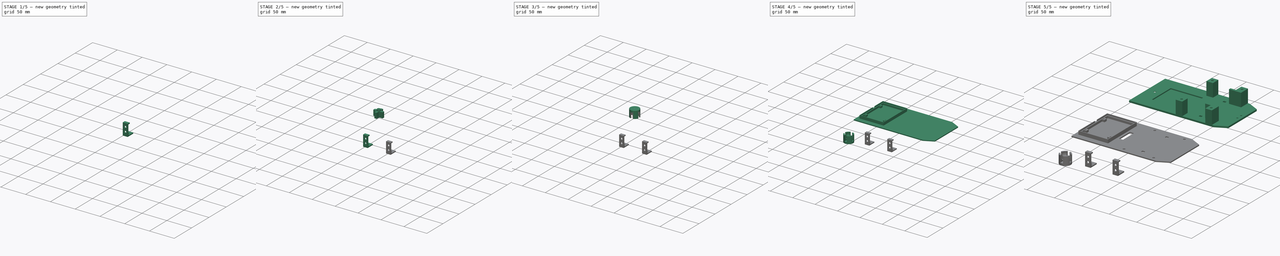
[diagram: build sequence overview — one tinted view per stage of 5, left to right]
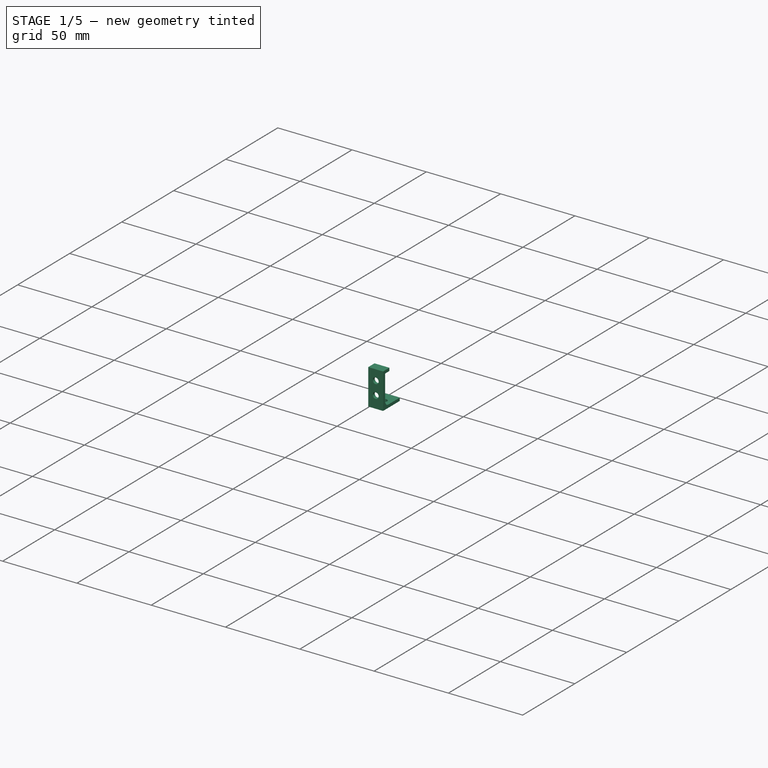
[diagram: stage 1 of 5 — iso view after this stage's code; geometry added in this stage tinted green]
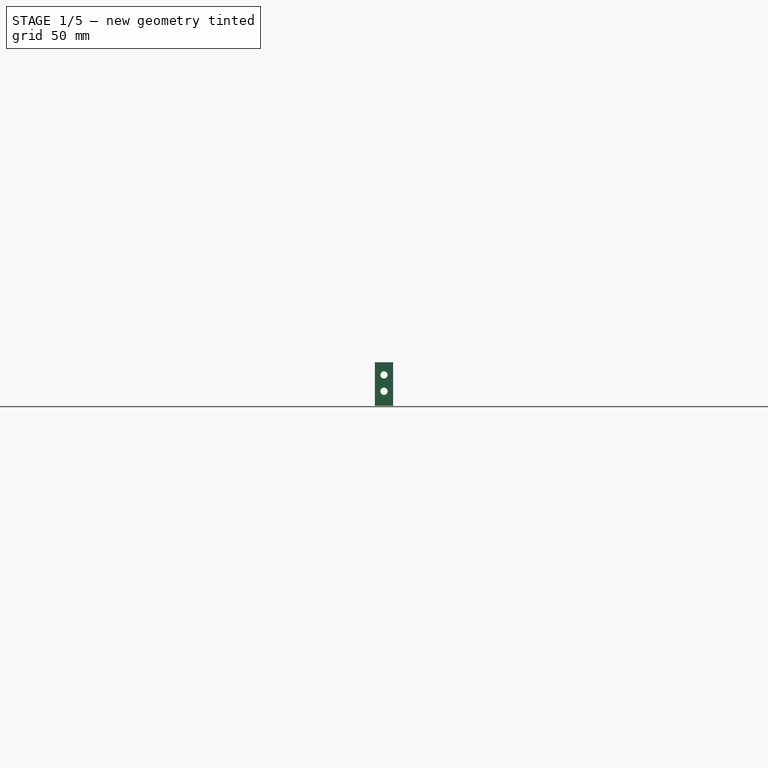
[diagram: stage 1 of 5 — front view after this stage's code; geometry added in this stage tinted green]
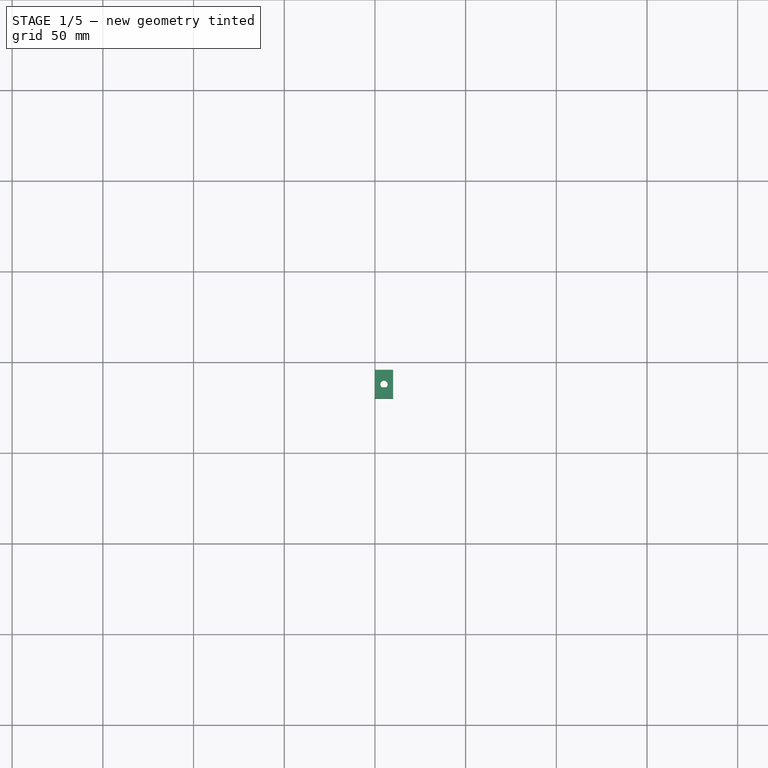
[diagram: stage 1 of 5 — top view after this stage's code; geometry added in this stage tinted green]
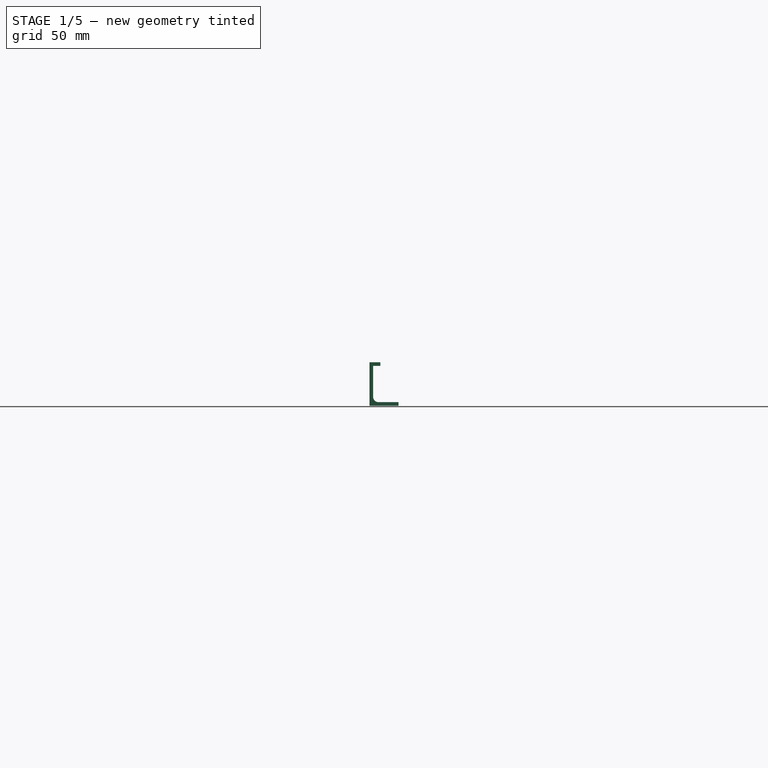
[diagram: stage 1 of 5 — right view after this stage's code; geometry added in this stage tinted green]
FCSTD DOCUMENT  (FreeCAD 0.16R6706 (Git))
Label: base-inferior(2)
License: All rights reserved
LicenseURL: http://en.wikipedia.org/wiki/All_rights_reserved
objects: Sketcher::SketchObject×14, PartDesign::Pocket×9, Part::Part2DObjectPython×9, PartDesign::Pad×5, App::Annotation×5, Part::Cylinder×3, Part::Cut×3, Part::Box×2, Part::MultiFuse×2, Part::Fillet×2, Part::Sphere×1
note: 64 computed .brp shape members not serialized (recipe doc carries the construction recipe); baked Part::Feature solids carry a one-line shape summary decoded from their .brp

FEATURE [Sketcher::SketchObject] Sketch
  Placement = pos=(0,150,0) rot=(0,0,1;0rad)
  sketch-geometry (6):
    g0: LineSegment StartX=-26 StartY=47 StartZ=0 EndX=-26 EndY=-47 EndZ=0
    g1: LineSegment StartX=-26 StartY=-47 StartZ=0 EndX=128 EndY=-47 EndZ=0
    g2: LineSegment StartX=128 StartY=47 StartZ=0 EndX=-26 EndY=47 EndZ=0
    g3: LineSegment StartX=148 StartY=37 StartZ=0 EndX=148 EndY=-37 EndZ=0
    g4: LineSegment StartX=128 StartY=47 StartZ=0 EndX=148 EndY=37 EndZ=0
    g5: LineSegment StartX=148 StartY=-37 StartZ=0 EndX=128 EndY=-47 EndZ=0
  constraints (16):
    c: Coincident(g0,g1)
    c: Coincident(g2,g0)
    c: Vertical(g0)
    c: Horizontal(g1)
    c: Horizontal(g2)
    c: DistanceX(g0,g-1) = 26
    c: DistanceX(g-1,g2) = 128
    c: Symmetric(g1,g2,g-1)
    c: DistanceY(g-1,g0) = 47
    c: DistanceX(g2,g3) = 20
    c: Symmetric(g3,g3,g-1)
    c: DistanceY(g3,g2) = 10
    c: Coincident(g2,g4)
    c: Coincident(g3,g4)
    c: Coincident(g3,g5)
    c: Coincident(g1,g5)
FEATURE [PartDesign::Pad] Pad
  Length = 3
  Length2 = 100
  Placement = pos=(0,150,0) rot=(0,0,1;0rad)
  Sketch = -> Sketch
  Type = 0
FEATURE [Sketcher::SketchObject] Sketch001
  Placement = pos=(0,150,3) rot=(0,0,1;0rad)
  Support = -> Pad [Face8]
  sketch-geometry (4):
    g0: LineSegment StartX=0 StartY=24.5 StartZ=0 EndX=59 EndY=24.5 EndZ=0
    g1: LineSegment StartX=59 StartY=24.5 StartZ=0 EndX=59 EndY=-24.5 EndZ=0
    g2: LineSegment StartX=59 StartY=-24.5 StartZ=0 EndX=0 EndY=-24.5 EndZ=0
    g3: LineSegment StartX=0 StartY=-24.5 StartZ=0 EndX=0 EndY=24.5 EndZ=0
  constraints (12):
    c: Coincident(g0,g1)
    c: Coincident(g1,g2)
    c: Coincident(g2,g3)
    c: Coincident(g3,g0)
    c: Horizontal(g0)
    c: Horizontal(g2)
    c: Vertical(g1)
    c: Vertical(g3)
    c: DistanceX(g-1,g0) = 0
    c: DistanceX(g0,g0) = 59
    c: Symmetric(g0,g2,g-1)
    c: DistanceY(g1,g0) = 49
FEATURE [PartDesign::Pocket] Pocket
  Length = 2
  Placement = pos=(0,150,0) rot=(0,0,1;0rad)
  Sketch = -> Sketch001
  Type = 0
FEATURE [Sketcher::SketchObject] Sketch002
  Placement = pos=(0,150,3) rot=(0,0,1;0rad)
  Support = -> Pocket [Face5]
  sketch-geometry (20):
    g0: LineSegment StartX=59 StartY=47 StartZ=0 EndX=71 EndY=47 EndZ=0
    g1: LineSegment StartX=71 StartY=47 StartZ=0 EndX=71 EndY=33 EndZ=0
    g2: LineSegment StartX=71 StartY=33 StartZ=0 EndX=59 EndY=33 EndZ=0
    g3: LineSegment StartX=59 StartY=33 StartZ=0 EndX=59 EndY=47 EndZ=0
    g4: LineSegment StartX=59 StartY=-33 StartZ=0 EndX=71 EndY=-33 EndZ=0
    g5: LineSegment StartX=71 StartY=-33 StartZ=0 EndX=71 EndY=-47 EndZ=0
    g6: LineSegment StartX=71 StartY=-47 StartZ=0 EndX=59 EndY=-47 EndZ=0
    g7: LineSegment StartX=59 StartY=-47 StartZ=0 EndX=59 EndY=-33 EndZ=0
    g8: LineSegment StartX=103 StartY=29 StartZ=0 EndX=125 EndY=29 EndZ=0
    g9: LineSegment StartX=125 StartY=29 StartZ=0 EndX=125 EndY=47 EndZ=0
    g10: LineSegment StartX=125 StartY=47 StartZ=0 EndX=113 EndY=47 EndZ=0
    g11: LineSegment StartX=113 StartY=47 StartZ=0 EndX=113 EndY=33 EndZ=0
    g12: LineSegment StartX=113 StartY=33 StartZ=0 EndX=103 EndY=33 EndZ=0
    g13: LineSegment StartX=103 StartY=33 StartZ=0 EndX=103 EndY=29 EndZ=0
    g14: LineSegment StartX=103 StartY=-29 StartZ=0 EndX=125 EndY=-29 EndZ=0
    g15: LineSegment StartX=125 StartY=-29 StartZ=0 EndX=125 EndY=-47 EndZ=0
    g16: LineSegment StartX=125 StartY=-47 StartZ=0 EndX=113 EndY=-47 EndZ=0
    g17: LineSegment StartX=113 StartY=-47 StartZ=0 EndX=113 EndY=-33 EndZ=0
    g18: LineSegment StartX=113 StartY=-33 StartZ=0 EndX=103 EndY=-33 EndZ=0
    g19: LineSegment StartX=103 StartY=-33 StartZ=0 EndX=103 EndY=-29 EndZ=0
  constraints (56):
    c: Coincident(g0,g1)
    c: Coincident(g1,g2)
    c: Coincident(g2,g3)
    c: Coincident(g3,g0)
    c: Horizontal(g0)
    c: Horizontal(g2)
    c: Vertical(g1)
    c: Vertical(g3)
    c: Coincident(g4,g5)
    c: Coincident(g5,g6)
    c: Coincident(g6,g7)
    c: Coincident(g7,g4)
    c: Horizontal(g4)
    c: Horizontal(g6)
    c: Vertical(g5)
    c: Vertical(g7)
    c: Coincident(g8,g9)
    c: Coincident(g9,g10)
    c: Coincident(g10,g11)
    c: Coincident(g11,g12)
    c: Coincident(g12,g13)
    c: Coincident(g13,g8)
    c: Coincident(g14,g15)
    c: Coincident(g15,g16)
    c: Coincident(g16,g17)
    c: Coincident(g17,g18)
    c: Coincident(g18,g19)
    c: Coincident(g19,g14)
    c: Horizontal(g8)
    c: Horizontal(g12)
    c: Horizontal(g10)
    c: Horizontal(g16)
    c: Horizontal(g18)
    c: Horizontal(g14)
    c: Vertical(g15)
    c: Vertical(g17)
    c: Vertical(g19)
    c: Vertical(g13)
    c: Vertical(g11)
    c: Vertical(g9)
    c: Symmetric(g5,g0,g-1)
    c: Symmetric(g2,g4,g-1)
    c: DistanceX(g-1,g2) = 59
    c: DistanceX(g0,g0) = 12
    c: DistanceX(g0,g10) = 42
    c: DistanceX(g12,g11) = 10
    c: DistanceX(g10,g9) = 12
    c: Symmetric(g14,g8,g-1)
    c: Symmetric(g17,g11,g-1)
    c: Symmetric(g8,g14,g-1)
    c: DistanceY(g6,g-1) = 47
    c: DistanceY(g5,g4) = 14
    c: DistanceY(g16,g-1) = 47
    c: Symmetric(g15,g9,g-1)
    c: DistanceY(g16,g17) = 14
    c: DistanceY(g8,g12) = 4
FEATURE [PartDesign::Pad] Pad001
  Length = 24
  Length2 = 100
  Placement = pos=(0,150,0) rot=(0,0,1;0rad)
  Sketch = -> Sketch002
  Type = 0
FEATURE [Sketcher::SketchObject] Sketch003
  Placement = pos=(0,150,3) rot=(0,0,1;0rad)
  Support = -> Pad001 [Face4]
  sketch-geometry (11):
    g0: Circle CenterX=-12 CenterY=0 CenterZ=0 NormalX=0 NormalY=0 NormalZ=1 Radius=2
    g1: Circle CenterX=142 CenterY=5 CenterZ=0 NormalX=0 NormalY=0 NormalZ=1 Radius=1.5
    g2: Circle CenterX=142 CenterY=-5 CenterZ=0 NormalX=0 NormalY=0 NormalZ=1 Radius=1.5
    g3: LineSegment StartX=96 StartY=33 StartZ=0 EndX=91 EndY=33 EndZ=0
    g4: LineSegment StartX=91 StartY=33 StartZ=0 EndX=91 EndY=29 EndZ=0
    g5: LineSegment StartX=91 StartY=29 StartZ=0 EndX=96 EndY=29 EndZ=0
    g6: LineSegment StartX=96 StartY=29 StartZ=0 EndX=96 EndY=33 EndZ=0
    g7: LineSegment StartX=96 StartY=-29 StartZ=0 EndX=91 EndY=-29 EndZ=0
    g8: LineSegment StartX=91 StartY=-29 StartZ=0 EndX=91 EndY=-33 EndZ=0
    g9: LineSegment StartX=91 StartY=-33 StartZ=0 EndX=96 EndY=-33 EndZ=0
    g10: LineSegment StartX=96 StartY=-33 StartZ=0 EndX=96 EndY=-29 EndZ=0
  constraints (31):
    c: Coincident(g3,g4)
    c: Coincident(g4,g5)
    c: Coincident(g5,g6)
    c: Coincident(g6,g3)
    c: Horizontal(g3)
    c: Horizontal(g5)
    c: Vertical(g4)
    c: Vertical(g6)
    c: Coincident(g7,g8)
    c: Coincident(g8,g9)
    c: Coincident(g9,g10)
    c: Coincident(g10,g7)
    c: Horizontal(g7)
    c: Horizontal(g9)
    c: Vertical(g8)
    c: Vertical(g10)
    c: Radius(g0) = 2
    c: Radius(g1) = 1.5
    c: Radius(g2) = 1.5
    c: DistanceY(g-1,g0) = 0
    c: DistanceX(g0,g-1) = 12
    c: Symmetric(g2,g1,g-1)
    c: DistanceY(g2,g1) = 10
    c: DistanceX(g-1,g2) = 142
    c: Symmetric(g5,g7,g-1)
    c: Symmetric(g9,g3,g-1)
    c: DistanceX(g-1,g5) = 96
    c: DistanceX(g4,g5) = 5
    c: DistanceY(g4,g3) = 4
    c: DistanceY(g-1,g3) = 33
    c: DistanceX(g8,g9) = 5
FEATURE [PartDesign::Pocket] Pocket001
  Length = 5
  Placement = pos=(0,150,0) rot=(0,0,1;0rad)
  Sketch = -> Sketch003
  Type = 1
FEATURE [Part::Fillet] Fillet002
  Base = -> Pocket001
  Edges = 1 edges r=3: [Edge15]
  Placement = pos=(100,-120,0) rot=(0,0,1;0rad)
FEATURE [App::Annotation] Text005
  LabelText = Escuadras
  Position = (10.14,-75.93,0)
FEATURE [Part::Part2DObjectPython] Line006  # Draft 2D object (typed FeaturePython)
  ChamferSize = 0
  Closed = false
  End = (52.2646,-78.4604,0)
  FilletRadius = 0
  Length = 41.6485
  MakeFace = true
  Points = (2) [(10.6161,-78.4604,0),(52.2646,-78.4604,0)]
  Start = (10.6161,-78.4604,0)
  Subdivisions = 0
FEATURE [Part::Part2DObjectPython] Line007  # Draft 2D object (typed FeaturePython)
  ChamferSize = 0
  Closed = false
  End = (56.2044,-102.38,0)
  FilletRadius = 0
  Length = 24.8932
  MakeFace = true
  Points = (2) [(51.7018,-77.8975,0),(56.2044,-102.38,0)]
  Start = (51.7018,-77.8975,0)
  Subdivisions = 0
FEATURE [Part::Part2DObjectPython] Line008  # Draft 2D object (typed FeaturePython)
  ChamferSize = 0
  Closed = false
  End = (104.607,-102.38,0)
  FilletRadius = 0
  Length = 57.5486
  MakeFace = true
  Points = (2) [(52.2646,-78.4604,0),(104.607,-102.38,0)]
  Start = (52.2646,-78.4604,0)
  Subdivisions = 0
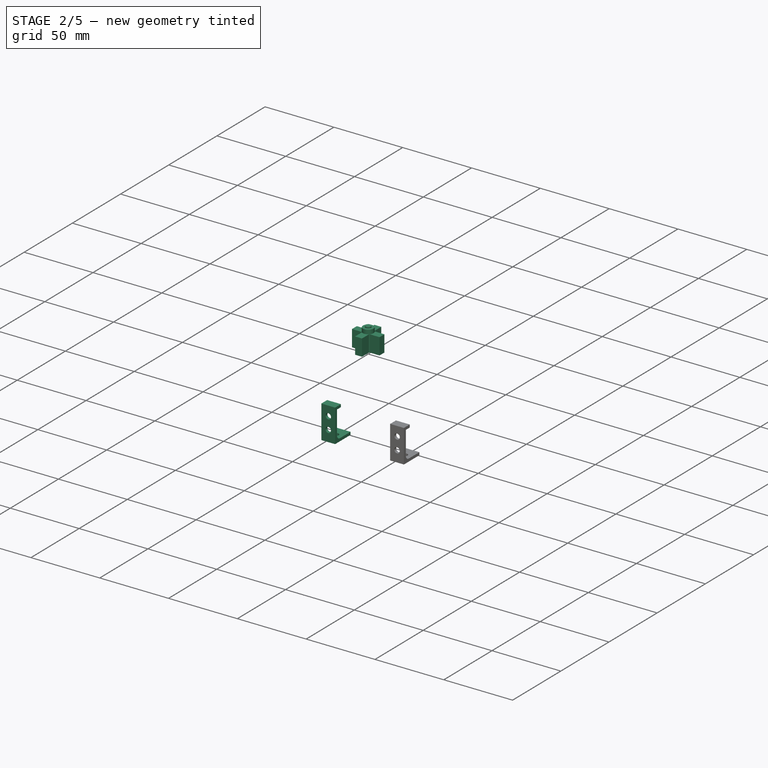
[diagram: stage 2 of 5 — iso view after this stage's code; geometry added in this stage tinted green]
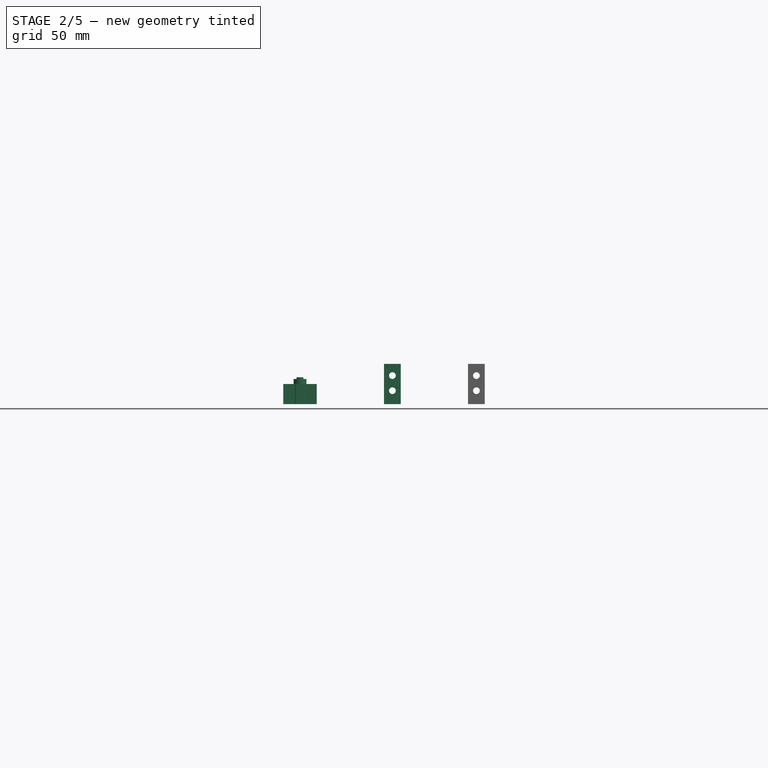
[diagram: stage 2 of 5 — front view after this stage's code; geometry added in this stage tinted green]
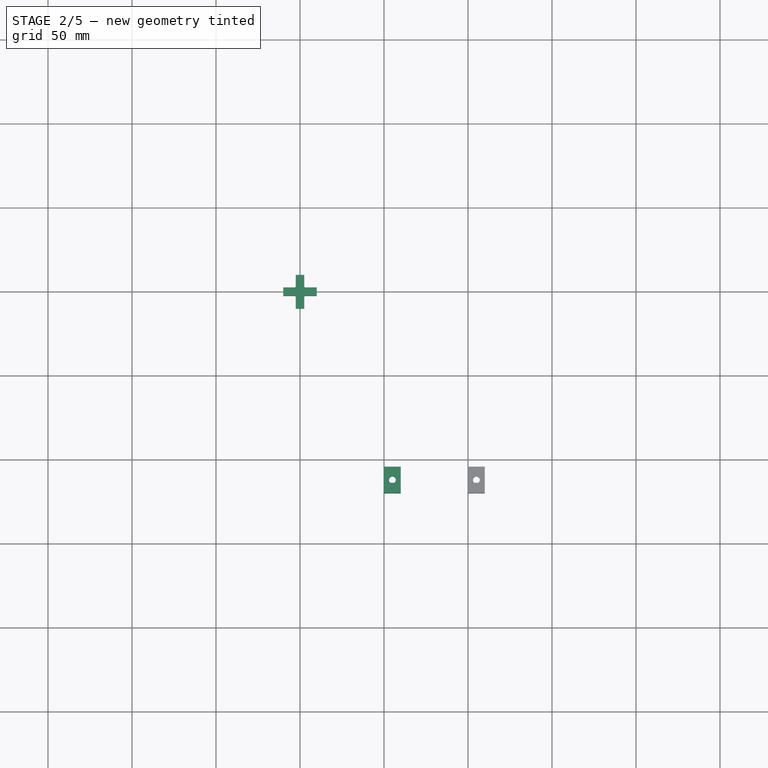
[diagram: stage 2 of 5 — top view after this stage's code; geometry added in this stage tinted green]
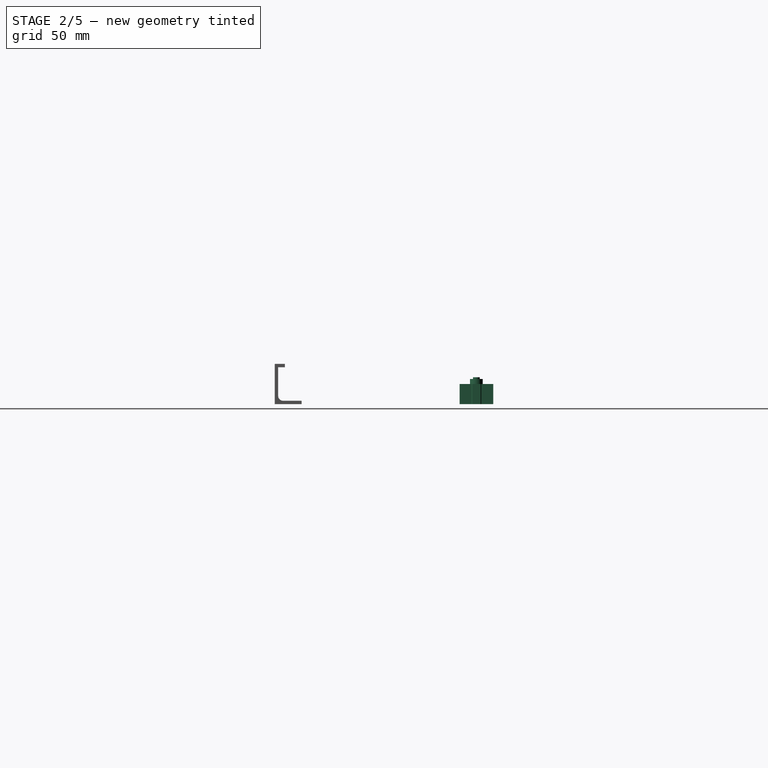
[diagram: stage 2 of 5 — right view after this stage's code; geometry added in this stage tinted green]
FEATURE [Part::Box] Box  label="Cubo"
  Height = 12
  Length = 5
  Placement = pos=(10,-2.5,0) rot=(0,0,1;1.5708rad)
  Width = 20
FEATURE [Part::Box] Box001  label="Cubo001"
  Height = 12
  Length = 5
  Placement = pos=(-2.5,-10,0) rot=(0,0,1;0rad)
  Width = 20
FEATURE [Part::Cylinder] Cylinder001  label="Cilindro001"
  Angle = 360
  Height = 16
  Radius = 2
FEATURE [Part::Cylinder] Cylinder002  label="Cilindro002"
  Angle = 360
  Height = 15
  Radius = 3.8
FEATURE [Part::MultiFuse] Fusion001
  Shapes = -> [Cylinder001,Cylinder002]
FEATURE [App::Annotation] Text
  LabelText = Porta-bola
  Position = (-76.26,-80.92,0)
FEATURE [Part::Part2DObjectPython] Line  # Draft 2D object (typed FeaturePython)
  ChamferSize = 0
  Closed = false
  End = (-24.2763,-84.6745,0)
  FilletRadius = 0
  Length = 52.12
  MakeFace = true
  Points = (2) [(-76.3963,-84.6745,0),(-24.2763,-84.6745,0)]
  Start = (-76.3963,-84.6745,0)
  Subdivisions = 0
FEATURE [App::Annotation] Text001
  LabelText = Base-superior
  Position = (-110.09,23.17,0)
FEATURE [Part::Part2DObjectPython] Line001  # Draft 2D object (typed FeaturePython)
  ChamferSize = 0
  Closed = false
  End = (-52.9561,18.7623,0)
  FilletRadius = 0
  Length = 58.0851
  MakeFace = true
  Points = (2) [(-111.04,19.147,0),(-52.9561,18.7623,0)]
  Start = (-111.04,19.147,0)
  Subdivisions = 0
FEATURE [Part::Part2DObjectPython] Line002  # Draft 2D object (typed FeaturePython)
  ChamferSize = 0
  Closed = false
  End = (-29.8765,3.76058,0)
  FilletRadius = 0
  Length = 26.4634
  MakeFace = true
  Points = (2) [(-52.1868,17.993,0),(-29.8765,3.76058,0)]
  Start = (-52.1868,17.993,0)
  Subdivisions = 0
FEATURE [Part::Part2DObjectPython] Line003  # Draft 2D object (typed FeaturePython)
  ChamferSize = 0
  Closed = false
  End = (-11.7974,-95.4819,0)
  FilletRadius = 0
  Length = 16.356
  MakeFace = true
  Points = (2) [(-24.1066,-84.7114,0),(-11.7974,-95.4819,0)]
  Start = (-24.1066,-84.7114,0)
  Subdivisions = 0
FEATURE [App::Annotation] Text002
  LabelText = Base-inferior
  Position = (-112.85,159.11,0)
FEATURE [Part::Part2DObjectPython] Line004  # Draft 2D object (typed FeaturePython)
  ChamferSize = 0
  Closed = false
  End = (-52.108,156.307,0)
  FilletRadius = 0
  Length = 65.1835
  MakeFace = true
  Points = (2) [(-117.291,156.307,0),(-52.108,156.307,0)]
  Start = (-117.291,156.307,0)
  Subdivisions = 0
FEATURE [Part::Part2DObjectPython] Line005  # Draft 2D object (typed FeaturePython)
  ChamferSize = 0
  Closed = false
  End = (-32.4829,140.887,0)
  FilletRadius = 0
  Length = 23.5506
  MakeFace = true
  Points = (2) [(-51.4071,154.905,0),(-32.4829,140.887,0)]
  Start = (-51.4071,154.905,0)
  Subdivisions = 0
FEATURE [App::Annotation] Text003
  LabelText = DiverBOT - PICAXE
  Position = (-117.69,218.48,0)
FEATURE [Part::Fillet] Fillet001
  Base = -> Pocket001
  Edges = 1 edges r=3: [Edge15]
  Placement = pos=(50,-120,0) rot=(0,0,1;0rad)
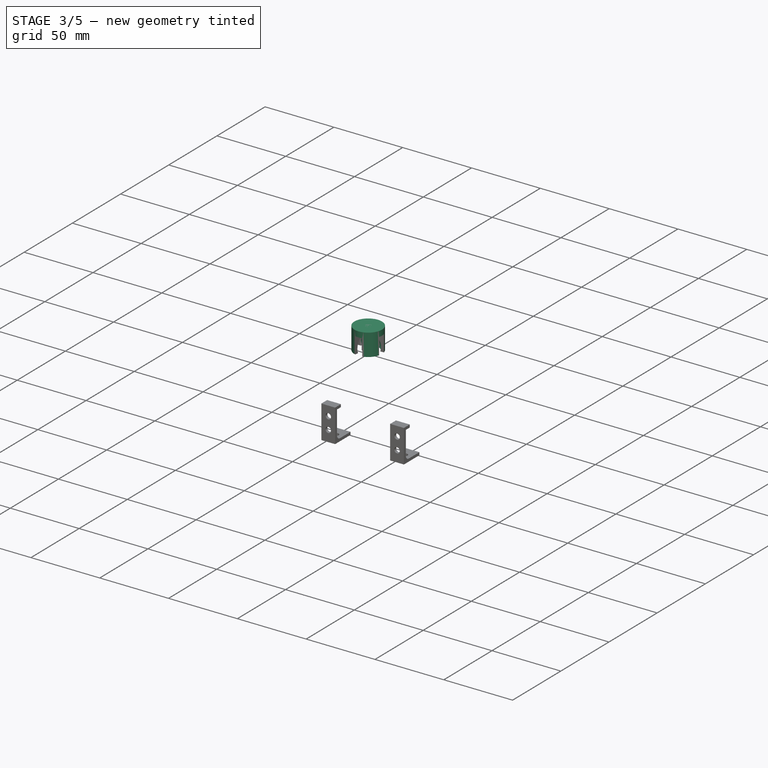
[diagram: stage 3 of 5 — iso view after this stage's code; geometry added in this stage tinted green]
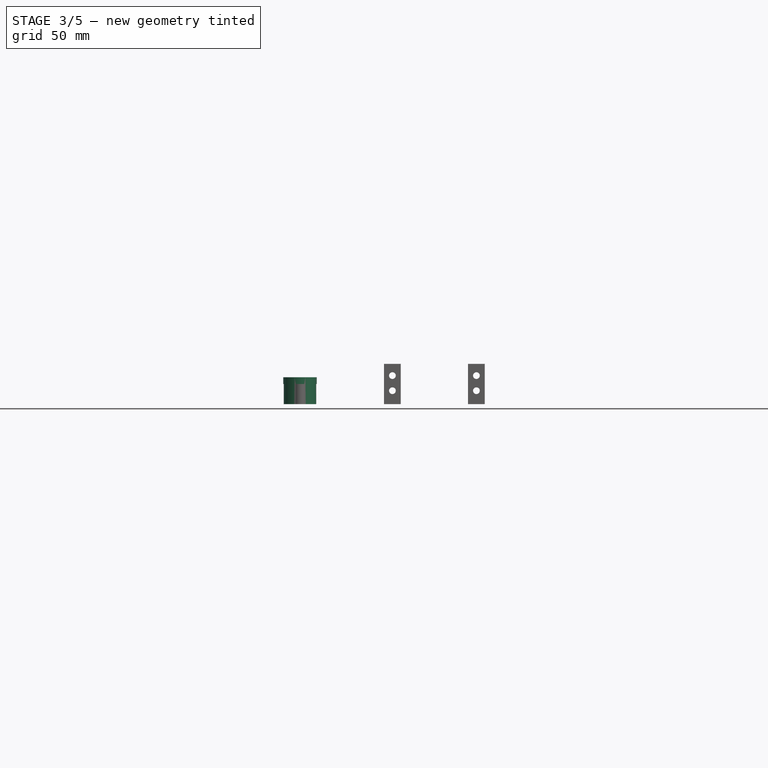
[diagram: stage 3 of 5 — front view after this stage's code; geometry added in this stage tinted green]
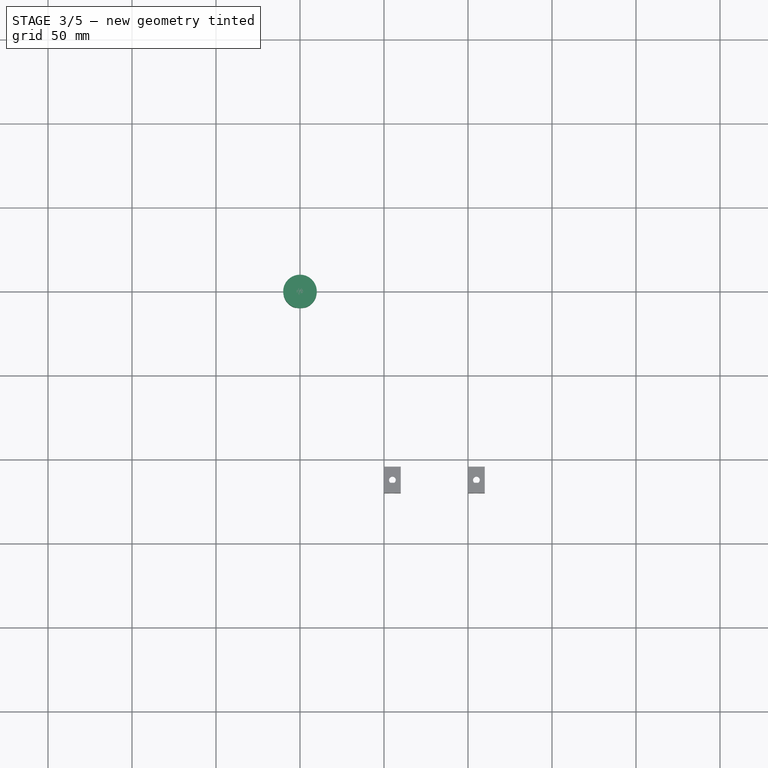
[diagram: stage 3 of 5 — top view after this stage's code; geometry added in this stage tinted green]
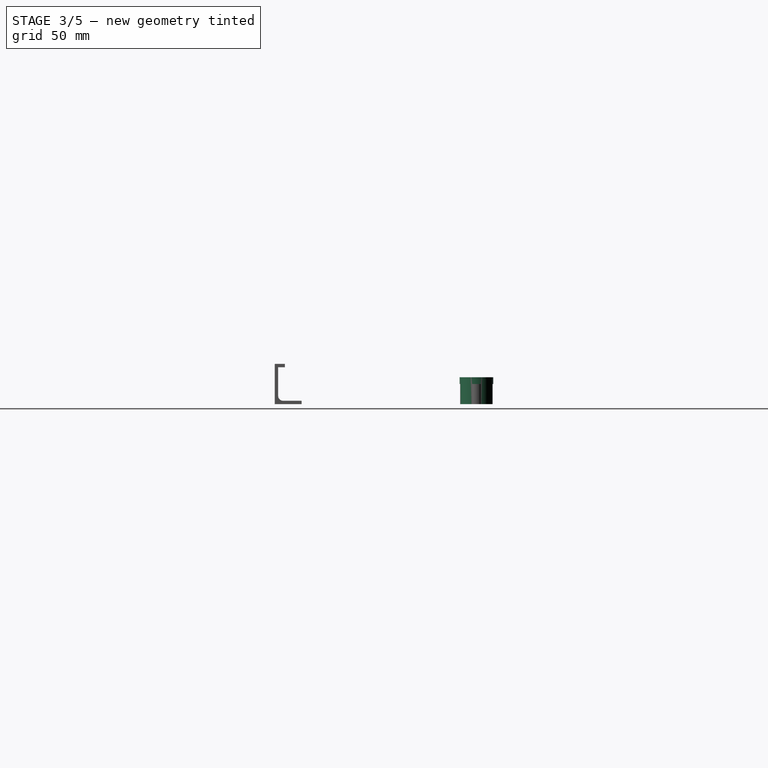
[diagram: stage 3 of 5 — right view after this stage's code; geometry added in this stage tinted green]
FEATURE [Part::Cylinder] Cylinder  label="Cilindro"
  Angle = 360
  Height = 16
  Radius = 10
FEATURE [Part::Sphere] Sphere  label="Esfera"
  Angle1 = -90
  Angle2 = 90
  Angle3 = 360
  Placement = pos=(0,0,3) rot=(0,0,1;0rad)
  Radius = 8
FEATURE [Part::Cut] Cut
  Base = -> Cylinder
  Tool = -> Sphere
FEATURE [Part::MultiFuse] Fusion
  Shapes = -> [Box,Box001]
FEATURE [Part::Cut] Cut001
  Base = -> Cut
  Tool = -> Fusion
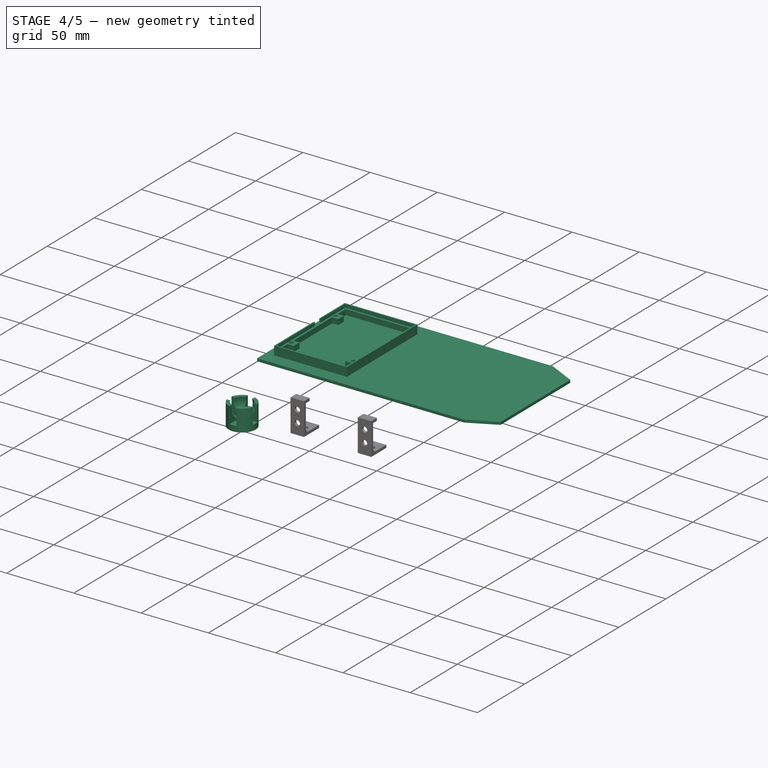
[diagram: stage 4 of 5 — iso view after this stage's code; geometry added in this stage tinted green]
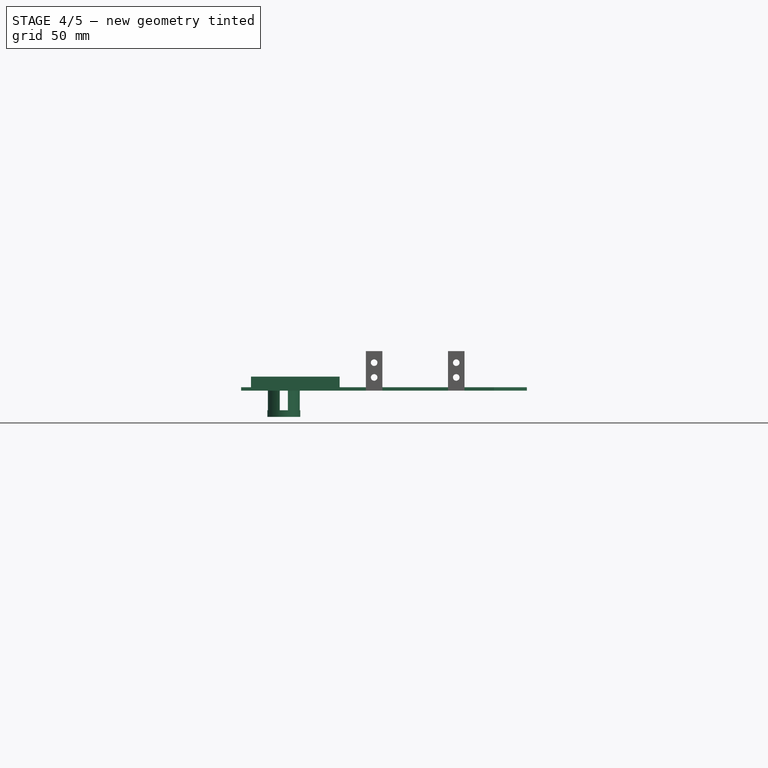
[diagram: stage 4 of 5 — front view after this stage's code; geometry added in this stage tinted green]
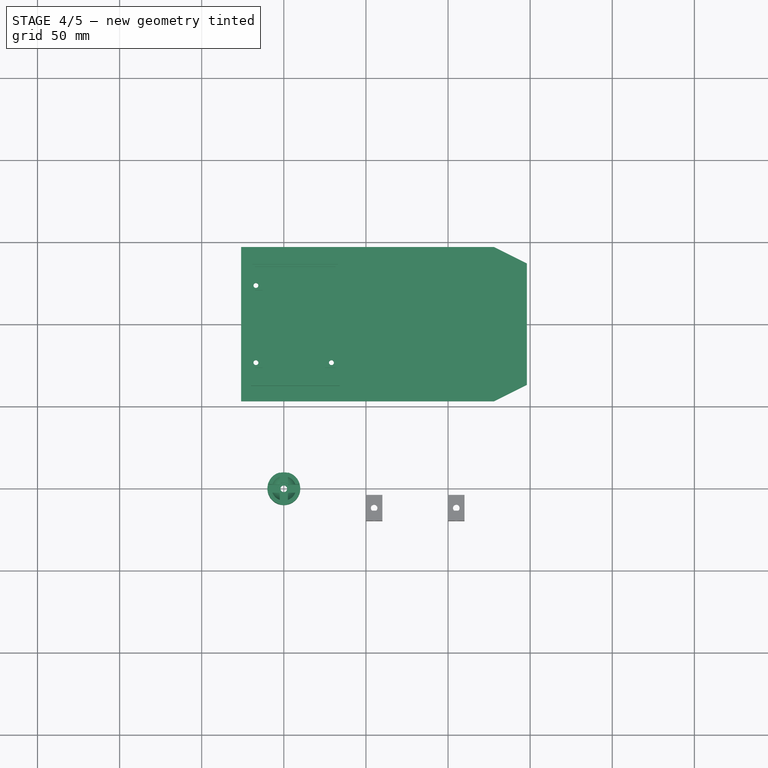
[diagram: stage 4 of 5 — top view after this stage's code; geometry added in this stage tinted green]
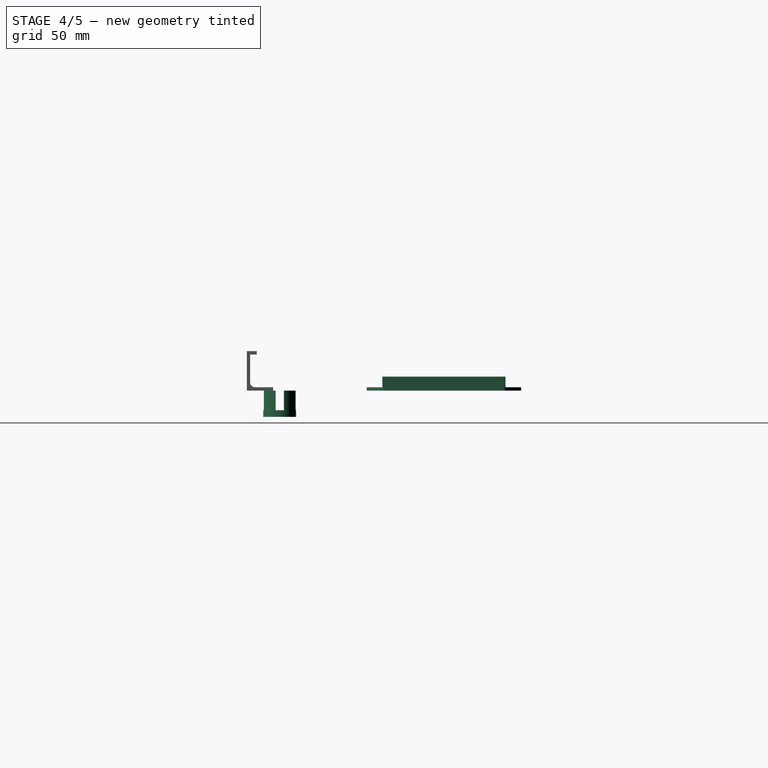
[diagram: stage 4 of 5 — right view after this stage's code; geometry added in this stage tinted green]
FEATURE [Sketcher::SketchObject] Sketch006
  sketch-geometry (6):
    g0: LineSegment StartX=-26 StartY=47 StartZ=0 EndX=-26 EndY=-47 EndZ=0
    g1: LineSegment StartX=-26 StartY=-47 StartZ=0 EndX=128 EndY=-47 EndZ=0
    g2: LineSegment StartX=128 StartY=47 StartZ=0 EndX=-26 EndY=47 EndZ=0
    g3: LineSegment StartX=148 StartY=37 StartZ=0 EndX=148 EndY=-37 EndZ=0
    g4: LineSegment StartX=128 StartY=47 StartZ=0 EndX=148 EndY=37 EndZ=0
    g5: LineSegment StartX=148 StartY=-37 StartZ=0 EndX=128 EndY=-47 EndZ=0
  constraints (16):
    c: Coincident(g0,g1)
    c: Coincident(g2,g0)
    c: Vertical(g0)
    c: Horizontal(g1)
    c: Horizontal(g2)
    c: DistanceX(g0,g-1) = 26
    c: DistanceX(g-1,g2) = 128
    c: Symmetric(g1,g2,g-1)
    c: DistanceY(g-1,g0) = 47
    c: DistanceX(g2,g3) = 20
    c: Symmetric(g3,g3,g-1)
    c: DistanceY(g3,g2) = 10
    c: Coincident(g2,g4)
    c: Coincident(g3,g4)
    c: Coincident(g3,g5)
    c: Coincident(g1,g5)
FEATURE [PartDesign::Pad] Pad002
  Length = 2
  Length2 = 100
  Sketch = -> Sketch006
  Type = 0
FEATURE [Sketcher::SketchObject] Sketch007
  Placement = pos=(0,0,2) rot=(0,0,1;0rad)
  Support = -> Pad002 [Face8]
  sketch-geometry (20):
    g0: LineSegment StartX=-20 StartY=37.5 StartZ=0 EndX=34 EndY=37.5 EndZ=0
    g1: LineSegment StartX=34 StartY=37.5 StartZ=0 EndX=34 EndY=-37.5 EndZ=0
    g2: LineSegment StartX=34 StartY=-37.5 StartZ=0 EndX=-20 EndY=-37.5 EndZ=0
    g3: LineSegment StartX=-20 StartY=-37.5 StartZ=0 EndX=-20 EndY=37.5 EndZ=0
    g4: LineSegment StartX=-17.5 StartY=35 StartZ=0 EndX=31.5 EndY=35 EndZ=0
    g5: LineSegment StartX=31.5 StartY=-35 StartZ=0 EndX=-17.5 EndY=-35 EndZ=0
    g6: LineSegment StartX=-17.5 StartY=-20.5 StartZ=0 EndX=-13 EndY=-20.5 EndZ=0
    g7: LineSegment StartX=-13 StartY=-20.5 StartZ=0 EndX=-13 EndY=-26.5 EndZ=0
    g8: LineSegment StartX=-13 StartY=-26.5 StartZ=0 EndX=-17.5 EndY=-26.5 EndZ=0
    g9: LineSegment StartX=25 StartY=-20.5 StartZ=0 EndX=31.5 EndY=-20.5 EndZ=0
    g10: LineSegment StartX=31.5 StartY=-26.5 StartZ=0 EndX=25 EndY=-26.5 EndZ=0
    g11: LineSegment StartX=25 StartY=-26.5 StartZ=0 EndX=25 EndY=-20.5 EndZ=0
    g12: LineSegment StartX=-17.5 StartY=26.5 StartZ=0 EndX=-13 EndY=26.5 EndZ=0
    g13: LineSegment StartX=-13 StartY=26.5 StartZ=0 EndX=-13 EndY=20.5 EndZ=0
    g14: LineSegment StartX=-13 StartY=20.5 StartZ=0 EndX=-17.5 EndY=20.5 EndZ=0
    g15: LineSegment StartX=-17.5 StartY=20.5 StartZ=0 EndX=-17.5 EndY=-20.5 EndZ=0
    g16: LineSegment StartX=-17.5 StartY=35 StartZ=0 EndX=-17.5 EndY=26.5 EndZ=0
    g17: LineSegment StartX=-17.5 StartY=-26.5 StartZ=0 EndX=-17.5 EndY=-35 EndZ=0
    g18: LineSegment StartX=31.5 StartY=-26.5 StartZ=0 EndX=31.5 EndY=-35 EndZ=0
    g19: LineSegment StartX=31.5 StartY=-20.5 StartZ=0 EndX=31.5 EndY=35 EndZ=0
  constraints (51):
    c: Coincident(g0,g1)
    c: Coincident(g1,g2)
    c: Coincident(g2,g3)
    c: Coincident(g3,g0)
    c: Horizontal(g0)
    c: Horizontal(g2)
    c: Vertical(g1)
    c: Vertical(g3)
    c: Horizontal(g4)
    c: Horizontal(g5)
    c: DistanceX(g0,g-1) = 20
    c: DistanceX(g4,g-1) = 17.5
    c: DistanceY(g-1,g0) = 37.5
    c: DistanceY(g-1,g4) = 35
    c: Symmetric(g4,g5,g-1)
    c: Symmetric(g2,g0,g-1)
    c: DistanceX(g0,g0) = 54
    c: DistanceX(g4,g4) = 49
    c: Coincident(g6,g7)
    c: Coincident(g7,g8)
    c: Horizontal(g6)
    c: Horizontal(g8)
    c: Vertical(g7)
    c: Coincident(g10,g11)
    c: Coincident(g11,g9)
    c: Horizontal(g9)
    c: Horizontal(g10)
    c: Vertical(g11)
    c: Coincident(g12,g13)
    c: Coincident(g13,g14)
    c: Horizontal(g12)
    c: Horizontal(g14)
    c: Vertical(g13)
    c: Symmetric(g6,g14,g-1)
    c: Symmetric(g13,g6,g-1)
    c: Symmetric(g8,g12,g-1)
    c: DistanceX(g5,g8) = 0
    c: DistanceX(g8,g7) = 4.5
    c: DistanceY(g7,g6) = 6
    c: DistanceX(g10,g5) = 0
    c: DistanceX(g9,g9) = 6.5
    c: DistanceY(g5,g8) = 8.5
    c: DistanceY(g5,g10) = 8.5
    c: DistanceY(g10,g9) = 6
    c: Coincident(g14,g15)
    c: Coincident(g6,g15)
    c: Coincident(g4,g16)
    c: Coincident(g8,g17)
    c: Coincident(g5,g17)
    c: Coincident(g4,g19)
    c: Coincident(g9,g19)
FEATURE [PartDesign::Pad] Pad003
  Length = 4
  Length2 = 100
  Sketch = -> Sketch007
  Type = 0
FEATURE [Sketcher::SketchObject] Sketch008
  Placement = pos=(0,0,6) rot=(0,0,1;0rad)
  Support = -> Pad003 [Face13]
  sketch-geometry (8):
    g0: LineSegment StartX=-20 StartY=37.5 StartZ=0 EndX=34 EndY=37.5 EndZ=0
    g1: LineSegment StartX=34 StartY=37.5 StartZ=0 EndX=34 EndY=-37.5 EndZ=0
    g2: LineSegment StartX=34 StartY=-37.5 StartZ=0 EndX=-20 EndY=-37.5 EndZ=0
    g3: LineSegment StartX=-20 StartY=-37.5 StartZ=0 EndX=-20 EndY=37.5 EndZ=0
    g4: LineSegment StartX=-19 StartY=36.5 StartZ=0 EndX=33 EndY=36.5 EndZ=0
    g5: LineSegment StartX=33 StartY=36.5 StartZ=0 EndX=33 EndY=-36.5 EndZ=0
    g6: LineSegment StartX=33 StartY=-36.5 StartZ=0 EndX=-19 EndY=-36.5 EndZ=0
    g7: LineSegment StartX=-19 StartY=-36.5 StartZ=0 EndX=-19 EndY=36.5 EndZ=0
  constraints (24):
    c: Coincident(g0,g1)
    c: Coincident(g1,g2)
    c: Coincident(g2,g3)
    c: Coincident(g3,g0)
    c: Horizontal(g0)
    c: Horizontal(g2)
    c: Vertical(g1)
    c: Vertical(g3)
    c: Coincident(g4,g5)
    c: Coincident(g5,g6)
    c: Coincident(g6,g7)
    c: Coincident(g7,g4)
    c: Horizontal(g4)
    c: Horizontal(g6)
    c: Vertical(g5)
    c: Vertical(g7)
    c: Symmetric(g0,g2,g-1)
    c: Symmetric(g4,g6,g-1)
    c: DistanceY(g-1,g0) = 37.5
    c: DistanceY(g-1,g4) = 36.5
    c: DistanceX(g0,g-1) = 20
    c: DistanceX(g4,g-1) = 19
    c: DistanceX(g4,g4) = 52
    c: DistanceX(g0,g0) = 54
FEATURE [PartDesign::Pad] Pad004
  Length = 2.5
  Length2 = 100
  Sketch = -> Sketch008
  Type = 0
FEATURE [Sketcher::SketchObject] Sketch009
  Placement = pos=(0,0,6) rot=(0,0,1;0rad)
  Support = -> Pad004 [Face6]
  sketch-geometry (3):
    g0: Circle CenterX=-17 CenterY=23.5 CenterZ=0 NormalX=0 NormalY=0 NormalZ=1 Radius=1.5
    g1: Circle CenterX=-17 CenterY=-23.5 CenterZ=0 NormalX=0 NormalY=0 NormalZ=1 Radius=1.5
    g2: Circle CenterX=29 CenterY=-23.5 CenterZ=0 NormalX=0 NormalY=0 NormalZ=1 Radius=1.5
  constraints (8):
    c: Radius(g0) = 1.5
    c: Equal(g0,g1)
    c: Equal(g0,g2)
    c: Symmetric(g1,g0,g-1)
    c: DistanceY(g1,g-1) = 23.5
    c: DistanceY(g2,g-1) = 23.5
    c: DistanceX(g1,g-1) = 17
    c: DistanceX(g-1,g2) = 29
FEATURE [PartDesign::Pocket] Pocket004
  Length = 5
  Sketch = -> Sketch009
  Type = 1
FEATURE [Sketcher::SketchObject] Sketch010
  Placement = pos=(0,0,8.5) rot=(0,0,1;0rad)
  Support = -> Pocket004 [Face1]
  sketch-geometry (8):
    g0: LineSegment StartX=-20 StartY=4.5 StartZ=0 EndX=-18.9717 EndY=4.5 EndZ=0
    g1: LineSegment StartX=-18.9717 StartY=4.5 StartZ=0 EndX=-18.9717 EndY=10.5 EndZ=0
    g2: LineSegment StartX=-18.9717 StartY=10.5 StartZ=0 EndX=-20 EndY=10.5 EndZ=0
    g3: LineSegment StartX=-20 StartY=10.5 StartZ=0 EndX=-20 EndY=4.5 EndZ=0
    g4: LineSegment StartX=32.9061 StartY=10.5 StartZ=0 EndX=33.9732 EndY=10.5 EndZ=0
    g5: LineSegment StartX=33.9732 StartY=10.5 StartZ=0 EndX=33.9732 EndY=4.5 EndZ=0
    g6: LineSegment StartX=33.9732 StartY=4.5 StartZ=0 EndX=32.9061 EndY=4.5 EndZ=0
    g7: LineSegment StartX=32.9061 StartY=4.5 StartZ=0 EndX=32.9061 EndY=10.5 EndZ=0
  constraints (20):
    c: Coincident(g0,g1)
    c: Coincident(g1,g2)
    c: Coincident(g2,g3)
    c: Coincident(g3,g0)
    c: Horizontal(g0)
    c: Horizontal(g2)
    c: Vertical(g1)
    c: Vertical(g3)
    c: DistanceY(g-1,g1) = 10.5
    c: DistanceY(g-1,g0) = 4.5
    c: Coincident(g4,g5)
    c: Coincident(g5,g6)
    c: Coincident(g6,g7)
    c: Coincident(g7,g4)
    c: Horizontal(g4)
    c: Horizontal(g6)
    c: Vertical(g5)
    c: Vertical(g7)
    c: DistanceY(g-1,g4) = 10.5
    c: DistanceY(g-1,g6) = 4.5
FEATURE [PartDesign::Pocket] Pocket005
  Length = 2.5
  Sketch = -> Sketch010
  Type = 0
FEATURE [Part::Cut] Cut002
  Base = -> Cut001
  Placement = pos=(0,-100,0) rot=(1,0,0;3.14159rad)
  Tool = -> Fusion001
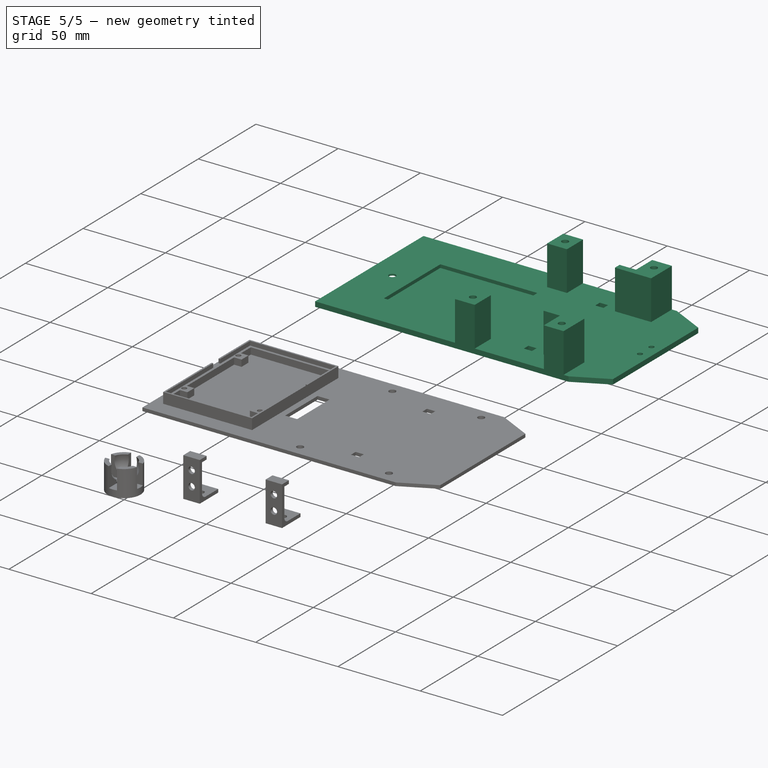
[diagram: stage 5 of 5 — iso view after this stage's code; geometry added in this stage tinted green]
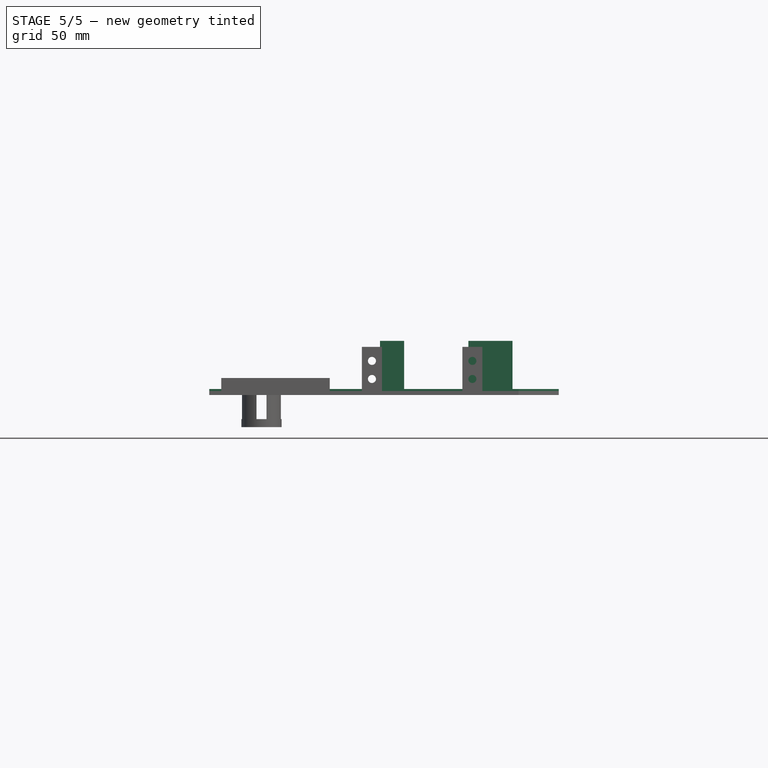
[diagram: stage 5 of 5 — front view after this stage's code; geometry added in this stage tinted green]
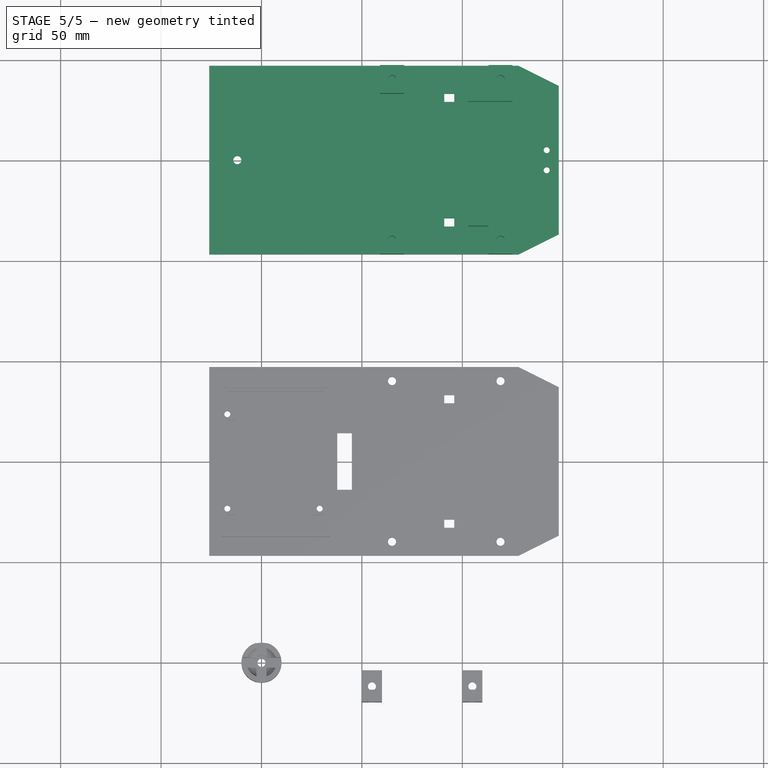
[diagram: stage 5 of 5 — top view after this stage's code; geometry added in this stage tinted green]
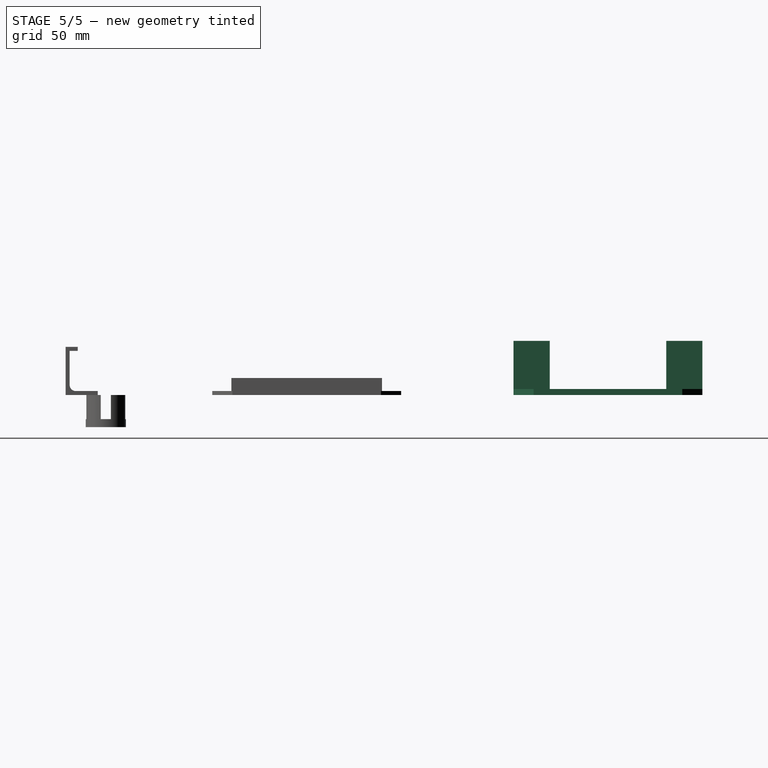
[diagram: stage 5 of 5 — right view after this stage's code; geometry added in this stage tinted green]
FEATURE [Sketcher::SketchObject] Sketch004
  Placement = pos=(0,150,0) rot=(1,0,0;3.14159rad)
  Support = -> Pocket001 [Face4]
  sketch-geometry (1):
    g0: Circle CenterX=-12 CenterY=0 CenterZ=0 NormalX=0 NormalY=0 NormalZ=1 Radius=10
  constraints (2):
    c: Radius(g0) = 10
    c: DistanceX(g0,g-1) = 12
FEATURE [PartDesign::Pocket] Pocket002
  Length = 2
  Placement = pos=(0,150,0) rot=(0,0,1;0rad)
  Sketch = -> Sketch004
  Type = 0
FEATURE [Sketcher::SketchObject] Sketch005
  Placement = pos=(0,150,27) rot=(0,0,1;0rad)
  Support = -> Pocket002 [Face11]
  sketch-geometry (4):
    g0: Circle CenterX=119 CenterY=40 CenterZ=0 NormalX=0 NormalY=0 NormalZ=1 Radius=2
    g1: Circle CenterX=65 CenterY=40 CenterZ=0 NormalX=0 NormalY=0 NormalZ=1 Radius=2
    g2: Circle CenterX=119 CenterY=-40 CenterZ=0 NormalX=0 NormalY=0 NormalZ=1 Radius=2
    g3: Circle CenterX=65 CenterY=-40 CenterZ=0 NormalX=0 NormalY=0 NormalZ=1 Radius=2
  constraints (10):
    c: Radius(g1) = 2
    c: Equal(g1,g0)
    c: Equal(g1,g3)
    c: Equal(g1,g2)
    c: Symmetric(g2,g0,g-1)
    c: Symmetric(g3,g1,g-1)
    c: DistanceX(g-1,g1) = 65
    c: DistanceX(g1,g0) = 54
    c: DistanceY(g-1,g0) = 40
    c: DistanceY(g-1,g1) = 40
FEATURE [PartDesign::Pocket] Pocket003
  Length = 18
  Placement = pos=(0,150,0) rot=(0,0,1;0rad)
  Sketch = -> Sketch005
  Type = 0
FEATURE [Sketcher::SketchObject] Sketch011
  Placement = pos=(0,0,2) rot=(0,0,1;0rad)
  Support = -> Pocket005 [Face17]
  sketch-geometry (8):
    g0: LineSegment StartX=91 StartY=33 StartZ=0 EndX=96 EndY=33 EndZ=0
    g1: LineSegment StartX=96 StartY=33 StartZ=0 EndX=96 EndY=29 EndZ=0
    g2: LineSegment StartX=96 StartY=29 StartZ=0 EndX=91 EndY=29 EndZ=0
    g3: LineSegment StartX=91 StartY=29 StartZ=0 EndX=91 EndY=33 EndZ=0
    g4: LineSegment StartX=91 StartY=-29 StartZ=0 EndX=96 EndY=-29 EndZ=0
    g5: LineSegment StartX=96 StartY=-29 StartZ=0 EndX=96 EndY=-33 EndZ=0
    g6: LineSegment StartX=96 StartY=-33 StartZ=0 EndX=91 EndY=-33 EndZ=0
    g7: LineSegment StartX=91 StartY=-33 StartZ=0 EndX=91 EndY=-29 EndZ=0
  constraints (23):
    c: Coincident(g0,g1)
    c: Coincident(g1,g2)
    c: Coincident(g2,g3)
    c: Coincident(g3,g0)
    c: Horizontal(g0)
    c: Horizontal(g2)
    c: Vertical(g1)
    c: Vertical(g3)
    c: Coincident(g4,g5)
    c: Coincident(g5,g6)
    c: Coincident(g6,g7)
    c: Coincident(g7,g4)
    c: Horizontal(g4)
    c: Horizontal(g6)
    c: Vertical(g5)
    c: Vertical(g7)
    c: Symmetric(g2,g4,g-1)
    c: Symmetric(g1,g4,g-1)
    c: DistanceY(g-1,g2) = 29
    c: DistanceY(g-1,g0) = 33
    c: Symmetric(g0,g6,g-1)
    c: DistanceX(g-1,g4) = 91
    c: DistanceX(g-1,g4) = 96
FEATURE [PartDesign::Pocket] Pocket006
  Length = 5
  Sketch = -> Sketch011
  Type = 1
FEATURE [Sketcher::SketchObject] Sketch012
  Placement = pos=(0,0,2) rot=(0,0,1;0rad)
  Support = -> Pocket006 [Face17]
  sketch-geometry (4):
    g0: Circle CenterX=119 CenterY=40 CenterZ=0 NormalX=0 NormalY=0 NormalZ=1 Radius=2
    g1: Circle CenterX=65 CenterY=40 CenterZ=0 NormalX=0 NormalY=0 NormalZ=1 Radius=2
    g2: Circle CenterX=119 CenterY=-40 CenterZ=0 NormalX=0 NormalY=0 NormalZ=1 Radius=2
    g3: Circle CenterX=65 CenterY=-40 CenterZ=0 NormalX=0 NormalY=0 NormalZ=1 Radius=2
  constraints (10):
    c: Radius(g1) = 2
    c: Equal(g1,g0)
    c: Equal(g1,g3)
    c: Equal(g1,g2)
    c: Symmetric(g3,g1,g-1)
    c: Symmetric(g0,g2,g-1)
    c: DistanceX(g-1,g1) = 65
    c: DistanceX(g1,g0) = 54
    c: DistanceY(g-1,g1) = 40
    c: DistanceY(g-1,g0) = 40
FEATURE [PartDesign::Pocket] Pocket007
  Length = 5
  Sketch = -> Sketch012
  Type = 1
FEATURE [Sketcher::SketchObject] Sketch013
  Placement = pos=(0,0,2) rot=(0,0,1;0rad)
  Support = -> Pocket007 [Face17]
  sketch-geometry (4):
    g0: LineSegment StartX=37.7252 StartY=14.0808 StartZ=0 EndX=45 EndY=14.0808 EndZ=0
    g1: LineSegment StartX=45 StartY=14.0808 StartZ=0 EndX=45 EndY=-14.0808 EndZ=0
    g2: LineSegment StartX=45 StartY=-14.0808 StartZ=0 EndX=37.7252 EndY=-14.0808 EndZ=0
    g3: LineSegment StartX=37.7252 StartY=-14.0808 StartZ=0 EndX=37.7252 EndY=14.0808 EndZ=0
  constraints (9):
    c: Coincident(g0,g1)
    c: Coincident(g1,g2)
    c: Coincident(g2,g3)
    c: Coincident(g3,g0)
    c: Horizontal(g0)
    c: Horizontal(g2)
    c: Vertical(g1)
    c: Vertical(g3)
    c: Symmetric(g0,g2,g-1)
FEATURE [PartDesign::Pocket] Pocket008
  Length = 5
  Sketch = -> Sketch013
  Type = 0
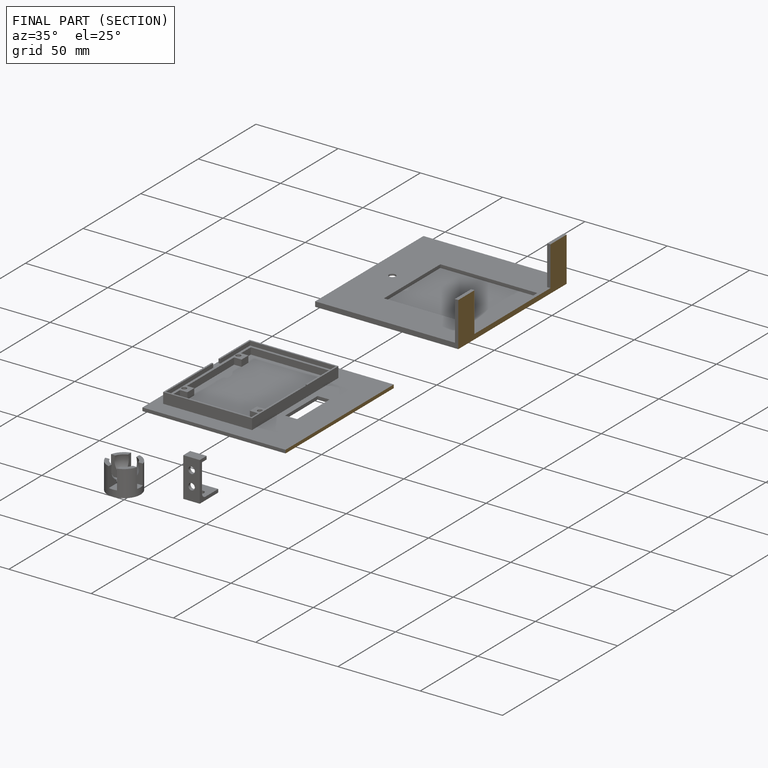
[diagram: finished part — half-section view (interior)]
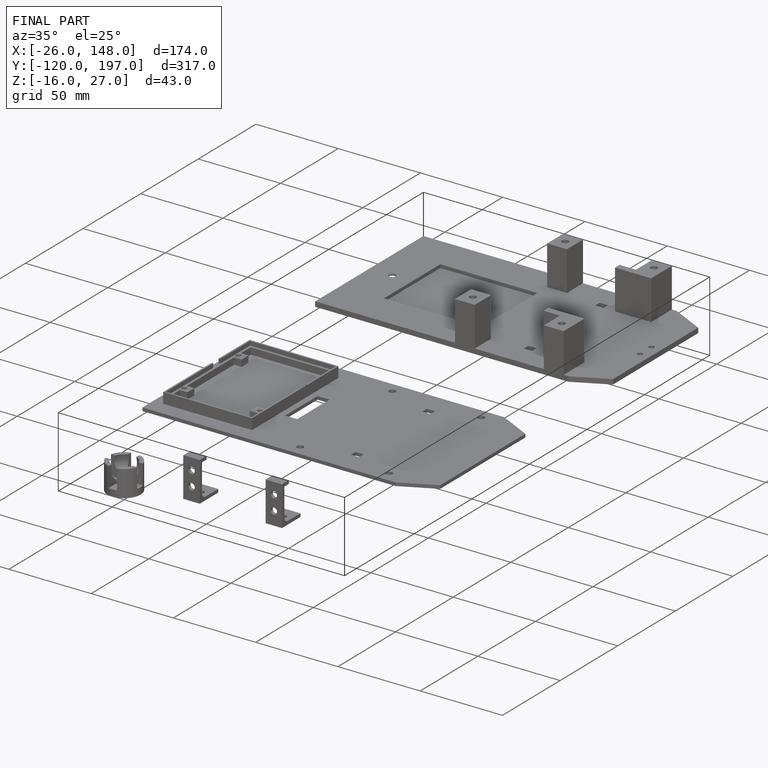
[diagram: finished part — iso view with bounding-box wireframe]
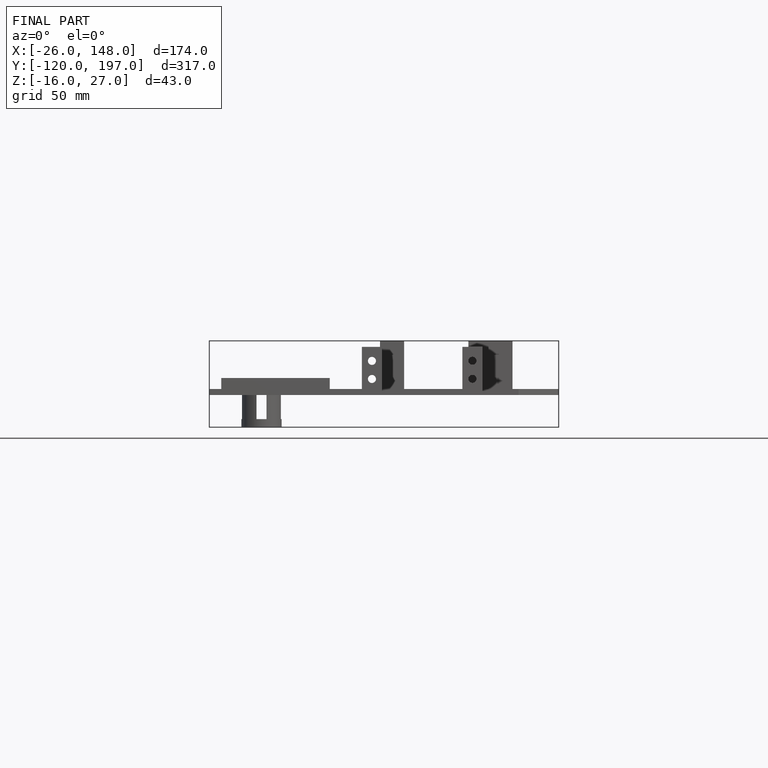
[diagram: finished part — front view with bounding-box wireframe]
